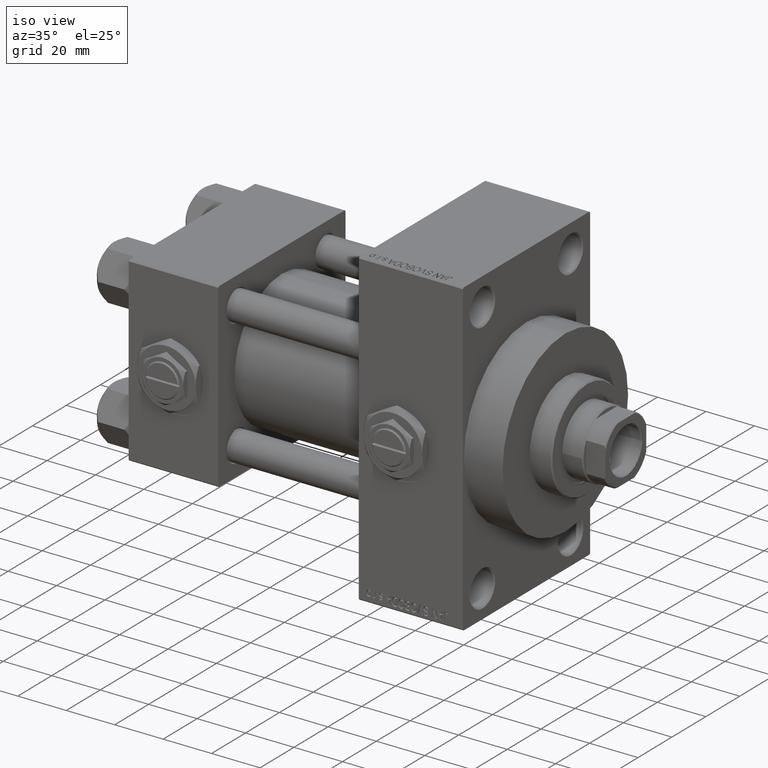
[diagram: clean part render]
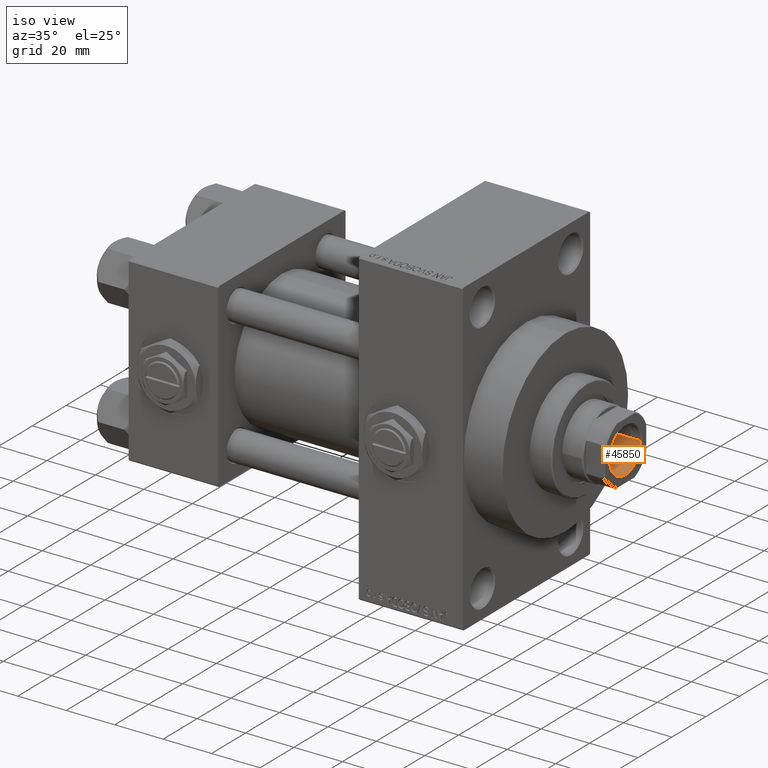
[diagram: same view with one face highlighted and labeled with its STEP entity id]
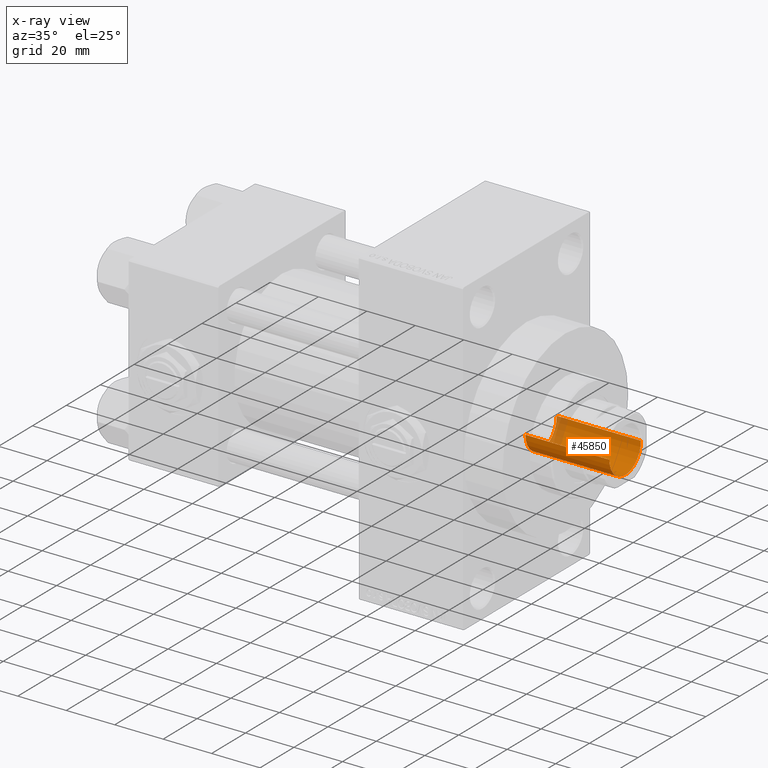
[diagram: x-ray of the same camera — body ghosted, the highlighted face saturated]
A machine part, iso view. The second image highlights one B-rep face of the part: STEP entity #45850.
The next image is the same camera in x-ray: the body ghosted, the highlighted face saturated — about 8% of this face is hidden behind the body in this view.
In plain terms, the highlighted cylindrical surface (edge-blend (fillet) strip) has radius 9.25 mm, axis along (1, 0, 0).
Its self-contained STEP definition (entity closure, byte-faithful):
#861 = VERTEX_POINT ( 'NONE', #15081 ) ;
#1809 = EDGE_CURVE ( 'NONE', #21452, #13465, #45043, .T. ) ;
#1967 = AXIS2_PLACEMENT_3D ( 'NONE', #33064, #28600, #14145 ) ;
#2743 = CARTESIAN_POINT ( 'NONE',  ( -9.249999999999994671, 1.132798289211300909E-15, 142.0000000000000284 ) ) ;
#3072 = CARTESIAN_POINT ( 'NONE',  ( 9.249999999999992895, 0.000000000000000000, 107.0000000000000142 ) ) ;
#3695 = DIRECTION ( 'NONE',  ( -0.000000000000000000, -0.000000000000000000, 1.000000000000000000 ) ) ;
#5815 = CIRCLE ( 'NONE', #44779, 9.249999999999992895 ) ;
#6053 = DIRECTION ( 'NONE',  ( -0.000000000000000000, -0.000000000000000000, 1.000000000000000000 ) ) ;
#12697 = CARTESIAN_POINT ( 'NONE',  ( 0.000000000000000000, 0.000000000000000000, 107.0000000000000142 ) ) ;
#13465 = VERTEX_POINT ( 'NONE', #46532 ) ;
#14145 = DIRECTION ( 'NONE',  ( 1.000000000000000000, 0.000000000000000000, 0.000000000000000000 ) ) ;
#14259 = CYLINDRICAL_SURFACE ( 'NONE', #21789, 9.249999999999994671 ) ;
#15081 = CARTESIAN_POINT ( 'NONE',  ( -9.249999999999994671, 1.132798289211300909E-15, 141.7000000000000171 ) ) ;
#15938 = ORIENTED_EDGE ( 'NONE', *, *, #39483, .F. ) ;
#16725 = EDGE_CURVE ( 'NONE', #21452, #24332, #5815, .T. ) ;
#17413 = DIRECTION ( 'NONE',  ( 1.000000000000000000, 0.000000000000000000, 0.000000000000000000 ) ) ;
#19605 = EDGE_CURVE ( 'NONE', #13465, #861, #47312, .T. ) ;
#21452 = VERTEX_POINT ( 'NONE', #3072 ) ;
#21789 = AXIS2_PLACEMENT_3D ( 'NONE', #29464, #6053, #25716 ) ;
#24332 = VERTEX_POINT ( 'NONE', #38448 ) ;
#25532 = EDGE_LOOP ( 'NONE', ( #15938, #48983, #43038, #47373 ) ) ;
#25716 = DIRECTION ( 'NONE',  ( 1.000000000000000000, 0.000000000000000000, 0.000000000000000000 ) ) ;
#26617 = CARTESIAN_POINT ( 'NONE',  ( 9.249999999999994671, 0.000000000000000000, 142.0000000000000284 ) ) ;
#28600 = DIRECTION ( 'NONE',  ( 0.000000000000000000, 0.000000000000000000, 1.000000000000000000 ) ) ;
#29464 = CARTESIAN_POINT ( 'NONE',  ( 0.000000000000000000, 0.000000000000000000, 142.0000000000000284 ) ) ;
#31769 = VECTOR ( 'NONE', #3695, 1000.000000000000000 ) ;
#33064 = CARTESIAN_POINT ( 'NONE',  ( 0.000000000000000000, 0.000000000000000000, 141.7000000000000171 ) ) ;
#33413 = VECTOR ( 'NONE', #44587, 1000.000000000000000 ) ;
#38448 = CARTESIAN_POINT ( 'NONE',  ( -9.249999999999992895, 1.132798289211300712E-15, 107.0000000000000142 ) ) ;
#39483 = EDGE_CURVE ( 'NONE', #24332, #861, #47589, .T. ) ;
#43038 = ORIENTED_EDGE ( 'NONE', *, *, #1809, .T. ) ;
#43802 = DIRECTION ( 'NONE',  ( -0.000000000000000000, -0.000000000000000000, 1.000000000000000000 ) ) ;
#44587 = DIRECTION ( 'NONE',  ( -0.000000000000000000, -0.000000000000000000, 1.000000000000000000 ) ) ;
#44779 = AXIS2_PLACEMENT_3D ( 'NONE', #12697, #43802, #17413 ) ;
#45043 = LINE ( 'NONE', #26617, #31769 ) ;
#45850 = ADVANCED_FACE ( 'NONE', ( #48379 ), #14259, .F. ) ;
#46532 = CARTESIAN_POINT ( 'NONE',  ( 9.249999999999994671, 0.000000000000000000, 141.7000000000000171 ) ) ;
#47312 = CIRCLE ( 'NONE', #1967, 9.249999999999994671 ) ;
#47373 = ORIENTED_EDGE ( 'NONE', *, *, #19605, .T. ) ;
#47589 = LINE ( 'NONE', #2743, #33413 ) ;
#48379 = FACE_OUTER_BOUND ( 'NONE', #25532, .T. ) ;
#48983 = ORIENTED_EDGE ( 'NONE', *, *, #16725, .F. ) ;